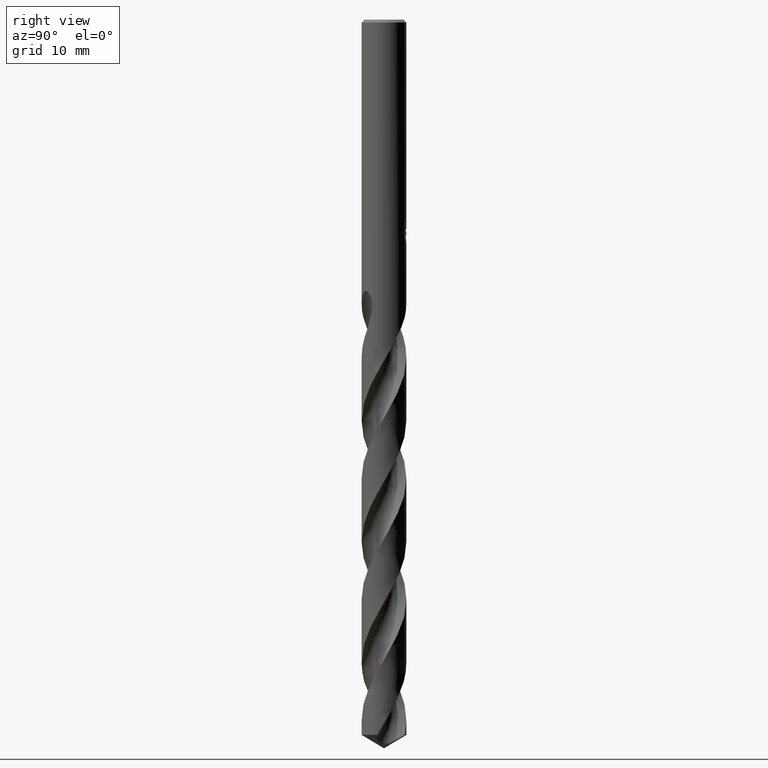
[diagram: clean part render]
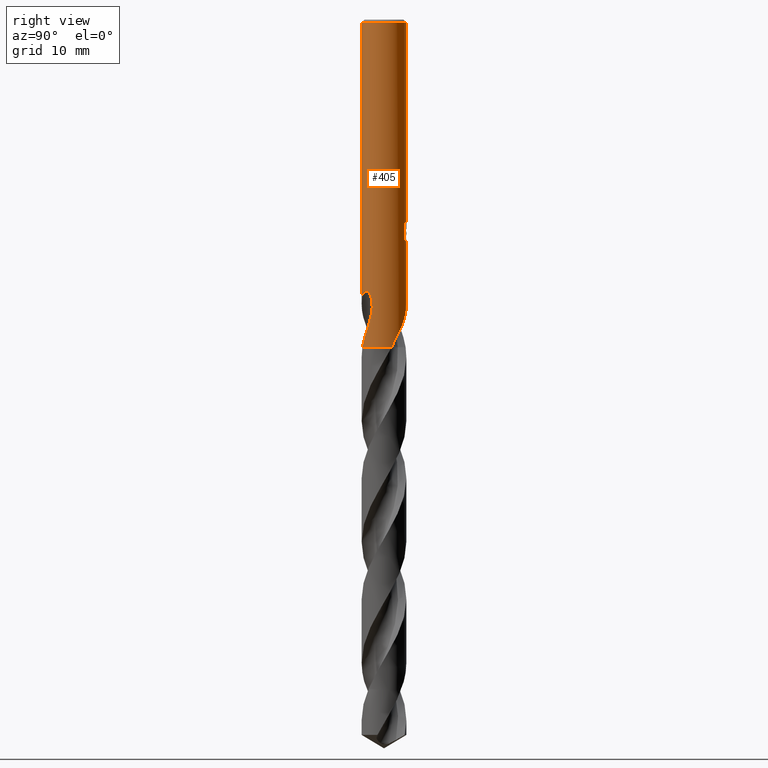
[diagram: same view with one face highlighted and labeled with its STEP entity id]
A machine part, right view. The second image highlights one B-rep face of the part: STEP entity #405.
In plain terms, the highlighted cylindrical surface (edge-blend (fillet) strip) has radius 3.1 mm, axis along (-0, -0, 1).
Its self-contained STEP definition (entity closure, byte-faithful):
#295=EDGE_CURVE('',#527,#435,#834,.T.);
#299=VERTEX_POINT('',#838);
#307=VERTEX_POINT('',#846);
#317=EDGE_CURVE('',#407,#623,#857,.T.);
#327=VERTEX_POINT('',#868);
#349=VERTEX_POINT('',#893);
#369=EDGE_CURVE('',#389,#299,#914,.T.);
#375=EDGE_CURVE('',#327,#615,#920,.T.);
#389=VERTEX_POINT('',#935);
#405=ADVANCED_FACE('',(#952),#953,.T.);
#407=VERTEX_POINT('',#955);
#435=VERTEX_POINT('',#985);
#495=EDGE_CURVE('',#563,#615,#1052,.T.);
#499=EDGE_CURVE('',#535,#575,#1056,.T.);
#517=EDGE_CURVE('',#299,#327,#1074,.T.);
#521=EDGE_CURVE('',#563,#807,#1079,.T.);
#527=VERTEX_POINT('',#1085);
#535=VERTEX_POINT('',#1094);
#561=VERTEX_POINT('',#1123);
#563=VERTEX_POINT('',#1125);
#569=EDGE_CURVE('',#389,#561,#1132,.T.);
#575=VERTEX_POINT('',#1139);
#587=EDGE_CURVE('',#407,#561,#1152,.T.);
#601=EDGE_CURVE('',#349,#623,#1166,.T.);
#615=VERTEX_POINT('',#1180);
#617=EDGE_CURVE('',#535,#731,#1182,.T.);
#623=VERTEX_POINT('',#1188);
#649=EDGE_CURVE('',#307,#527,#1218,.T.);
#657=EDGE_CURVE('',#763,#349,#1226,.T.);
#689=EDGE_CURVE('',#435,#763,#1261,.T.);
#713=EDGE_CURVE('',#575,#307,#1289,.T.);
#721=EDGE_CURVE('',#807,#731,#1297,.T.);
#731=VERTEX_POINT('',#1308);
#763=VERTEX_POINT('',#1344);
#807=VERTEX_POINT('',#1394);
#834=B_SPLINE_CURVE_WITH_KNOTS('',3,(#1414,#1415,#1416,#1417,#1418,#1419,#1420,#1421),.UNSPECIFIED.,.F.,.F.,(4,2,2,4),(8.15966420136941,8.47228526715934,8.78490633294927,9.41321858777906),.UNSPECIFIED.);
#838=CARTESIAN_POINT('',(2.5222907062751,-1.80223461098667,-40.9947012967414));
#846=CARTESIAN_POINT('',(0.873560781758957,2.97437246500378,-29.3198931596091));
#857=LINE('',#1604,#1605);
#868=CARTESIAN_POINT('',(2.15473976281074,-2.2286983991923,-42.6922));
#893=CARTESIAN_POINT('',(0.799431726384364,2.99514756144837,-28.000000276873));
#914=B_SPLINE_CURVE_WITH_KNOTS('',3,(#1813,#1814,#1815,#1816,#1817,#1818,#1819,#1820,#1821,#1822,#1823,#1824,#1825,#1826,#1827,#1828,#1829,#1830,#1831,#1832,#1833,#1834,#1835,#1836,#1837,#1838,#1839,#1840,#1841,#1842),.UNSPECIFIED.,.F.,.F.,(4,2,2,2,2,2,2,2,2,2,2,2,2,2,4),(0.0,1.51882806749273,2.34814309206105,3.09929389552633,3.97195054001777,5.02021064371413,5.92875563348902,6.34047695448266,6.64139503833549,6.92615155074278,7.28738216247934,7.81587719972031,8.5671950340882,9.05885319429973,9.57555253420532),.UNSPECIFIED.);
#920=B_SPLINE_CURVE_WITH_KNOTS('',3,(#1954,#1955,#1956,#1957,#1958,#1959,#1960,#1961),.UNSPECIFIED.,.F.,.F.,(4,2,2,4),(0.0,0.874748999898117,1.67779449377493,2.91025092527452),.UNSPECIFIED.);
#935=CARTESIAN_POINT('',(9.22563102843422E-013,-3.1,-39.3969657646597));
#952=FACE_OUTER_BOUND('',#3245,.T.);
#953=CYLINDRICAL_SURFACE('',#3246,3.1);
#955=CARTESIAN_POINT('',(0.0,3.1,-0.399999999999999));
#985=CARTESIAN_POINT('',(1.33721006514658,2.79676049058025,-30.2901657003257));
#1052=CIRCLE('',#5490,3.1);
#1056=B_SPLINE_CURVE_WITH_KNOTS('',3,(#5495,#5496,#5497,#5498,#5499,#5500,#5501,#5502,#5503,#5504,#5505,#5506,#5507,#5508,#5509,#5510),.UNSPECIFIED.,.F.,.F.,(4,2,2,2,2,2,2,4),(5.64977016343772,6.27877336211963,6.59268624981771,6.90659913751579,7.22051202521387,7.53442491291195,7.84704601060205,8.15966710829215),.UNSPECIFIED.);
#1074=B_SPLINE_CURVE_WITH_KNOTS('',3,(#5742,#5743,#5744,#5745),.UNSPECIFIED.,.F.,.F.,(4,4),(0.0,1.78163168796762),.UNSPECIFIED.);
#1079=B_SPLINE_CURVE_WITH_KNOTS('',3,(#5751,#5752,#5753,#5754,#5755,#5756,#5757,#5758,#5759,#5760),.UNSPECIFIED.,.F.,.F.,(4,2,2,2,4),(0.0,1.59395981695958,2.08115258226266,2.16518732635923,2.22181156654489),.UNSPECIFIED.);
#1085=CARTESIAN_POINT('',(0.873560781758956,2.97437246500378,-30.7587351791531));
#1094=CARTESIAN_POINT('',(-1.44945831354929E-017,3.1,-31.0310253601033));
#1123=CARTESIAN_POINT('',(3.79627969684937E-016,-3.1,-0.399999999999999));
#1125=CARTESIAN_POINT('',(2.91464264555407,1.05586848078612,-45.4));
#1132=LINE('',#7438,#7439);
#1139=CARTESIAN_POINT('',(0.29010312703583,3.08639598491251,-30.9998328990228));
#1152=CIRCLE('',#7989,3.1);
#1166=B_SPLINE_CURVE_WITH_KNOTS('',3,(#8158,#8159,#8160,#8161,#8162,#8163,#8164,#8165,#8166,#8167,#8168,#8169,#8170,#8171,#8172,#8173,#8174,#8175,#8176,#8177,#8178,#8179,#8180,#8181,#8182,#8183,#8184),.UNSPECIFIED.,.F.,.F.,(4,2,3,2,2,2,2,2,2,2,2,2,4),(-0.544047311581541,-0.27202365579077,0.0,0.27202365579077,0.54404731158154,0.817537563624119,1.0910278156667,1.36199091962429,1.63295402358188,1.90466121485385,2.17636840612583,2.4480755973978,2.71978278866978),.UNSPECIFIED.);
#1180=CARTESIAN_POINT('',(0.805251289871734,-2.99358820818093,-45.4));
#1182=LINE('',#8338,#8339);
#1188=CARTESIAN_POINT('',(1.98869905017056E-015,3.1,-29.0232688117743));
#1218=LINE('',#8788,#8789);
#1226=B_SPLINE_CURVE_WITH_KNOTS('',3,(#8799,#8800,#8801,#8802,#8803,#8804,#8805,#8806),.UNSPECIFIED.,.F.,.F.,(4,2,2,4),(0.628312277159022,1.25662455431804,1.56924563035358,1.88186670638912),.UNSPECIFIED.);
#1261=LINE('',#9839,#9840);
#1289=ELLIPSE('',#11669,9.4487831774463,3.1);
#1297=B_SPLINE_CURVE_WITH_KNOTS('',3,(#11827,#11828,#11829,#11830,#11831,#11832,#11833,#11834,#11835,#11836,#11837,#11838,#11839,#11840,#11841,#11842,#11843,#11844,#11845,#11846,#11847,#11848,#11849,#11850,#11851,#11852,#11853,#11854,#11855,#11856),.UNSPECIFIED.,.F.,.F.,(4,2,2,2,2,2,2,2,2,2,2,2,2,2,4),(0.0,1.51882806749273,2.3481430920609,3.0992938955258,3.97195054001711,5.0202106437135,5.92875563348835,6.34047695448195,6.64139503833474,6.926151550742,7.28738216247857,7.81587719971821,8.56719503408224,9.0588531942914,9.57555253419443),.UNSPECIFIED.);
#1308=CARTESIAN_POINT('',(-9.24561504287748E-013,3.1,-39.3969657646597));
#1344=CARTESIAN_POINT('',(1.33721006514658,2.79676049058025,-28.5150484364821));
#1394=CARTESIAN_POINT('',(1.97536810780282,2.38912553849217,-42.6922));
#1414=CARTESIAN_POINT('',(0.599953570112042,3.04139042441279,-30.9051941843535));
#1415=CARTESIAN_POINT('',(0.699984278209264,3.02165807331751,-30.8633657111675));
#1416=CARTESIAN_POINT('',(0.795382103298816,2.9976287698751,-30.8115954578542));
#1417=CARTESIAN_POINT('',(0.971201062765724,2.94536575455258,-30.6928303330075));
#1418=CARTESIAN_POINT('',(1.05162806896839,2.91717231579037,-30.6258264354077));
#1419=CARTESIAN_POINT('',(1.26558117285469,2.83404251565313,-30.4120828026627));
#1420=CARTESIAN_POINT('',(1.39018906519454,2.77244069292176,-30.2315967283389));
#1421=CARTESIAN_POINT('',(1.47389663174399,2.72720162784744,-30.0317064747582));
#1604=CARTESIAN_POINT('',(-3.79627969684937E-016,3.1,-41.7));
#1605=VECTOR('',#14806,1.0);
#1813=CARTESIAN_POINT('',(-1.97536810780282,-2.38912553849217,-42.6922));
#1814=CARTESIAN_POINT('',(-1.7708807234358,-2.55819905556719,-42.261022001472));
#1815=CARTESIAN_POINT('',(-1.53576649982899,-2.70849367566801,-41.8590250964487));
#1816=CARTESIAN_POINT('',(-1.1257973591669,-2.89271122258338,-41.1874616926583));
#1817=CARTESIAN_POINT('',(-0.978271281837683,-2.9457036191997,-40.9511832219425));
#1818=CARTESIAN_POINT('',(-0.692679434102988,-3.02490259327778,-40.4938093138894));
#1819=CARTESIAN_POINT('',(-0.555888832730788,-3.05288340430265,-40.2748457808992));
#1820=CARTESIAN_POINT('',(-0.259794797245697,-3.09326662945122,-39.8029211960476));
#1821=CARTESIAN_POINT('',(-0.098018095718679,-3.10274750096446,-39.5462661558878));
#1822=CARTESIAN_POINT('',(0.261246521940527,-3.09519051117856,-38.9971963347391));
#1823=CARTESIAN_POINT('',(0.47425412898615,-3.07181686471941,-38.6847696046472));
#1824=CARTESIAN_POINT('',(0.885011757644625,-2.97742290574301,-38.169599482215));
#1825=CARTESIAN_POINT('',(1.11226752420549,-2.90550662943275,-37.9182166185662));
#1826=CARTESIAN_POINT('',(1.45621687591263,-2.73927441599933,-37.6828219096917));
#1827=CARTESIAN_POINT('',(1.57006637132762,-2.6765179412803,-37.6246464646858));
#1828=CARTESIAN_POINT('',(1.76955686207914,-2.54730081379236,-37.5799573040035));
#1829=CARTESIAN_POINT('',(1.85137911464216,-2.48845436381772,-37.5791228570071));
#1830=CARTESIAN_POINT('',(2.00377747902953,-2.36724296106536,-37.6182352139647));
#1831=CARTESIAN_POINT('',(2.07042891922598,-2.30870027340028,-37.6549065146684));
#1832=CARTESIAN_POINT('',(2.20606386004693,-2.18040854645807,-37.769646790266));
#1833=CARTESIAN_POINT('',(2.26881472191503,-2.11392455348813,-37.8543618397177));
#1834=CARTESIAN_POINT('',(2.39734877656159,-1.96875188957499,-38.0863379504036));
#1835=CARTESIAN_POINT('',(2.4587854930895,-1.8896949907297,-38.2583956716662));
#1836=CARTESIAN_POINT('',(2.57431496444712,-1.73094973858956,-38.7397940396019));
#1837=CARTESIAN_POINT('',(2.61608153922309,-1.66333190051155,-39.0826395058668));
#1838=CARTESIAN_POINT('',(2.63675433887376,-1.63026516108643,-39.7171628866849));
#1839=CARTESIAN_POINT('',(2.63189355114085,-1.63832480796254,-39.9698619826939));
#1840=CARTESIAN_POINT('',(2.59756121997833,-1.69226152419044,-40.4827148869004));
#1841=CARTESIAN_POINT('',(2.56690652348506,-1.73979320606883,-40.7409383471765));
#1842=CARTESIAN_POINT('',(2.5222907062751,-1.80223461098667,-40.9947012967415));
#1954=CARTESIAN_POINT('',(2.15473976281074,-2.2286983991923,-42.6922));
#1955=CARTESIAN_POINT('',(2.05475118776796,-2.32536888567425,-42.9484767015814));
#1956=CARTESIAN_POINT('',(1.94691940165378,-2.41723925921789,-43.1993415346584));
#1957=CARTESIAN_POINT('',(1.70888614047329,-2.5902794888438,-43.6945440270179));
#1958=CARTESIAN_POINT('',(1.58617492382283,-2.66776128663929,-43.9386089439669));
#1959=CARTESIAN_POINT('',(1.24730137466567,-2.84748669428215,-44.5982105108048));
#1960=CARTESIAN_POINT('',(1.03028936420251,-2.93305476569547,-44.9994833157));
#1961=CARTESIAN_POINT('',(0.805251289871729,-2.99358820818094,-45.4));
#3245=EDGE_LOOP('',(#14880,#14881,#14882,#14883,#14884,#14885,#14886,#14887,#14888,#14889,#14890,#14891,#14892,#14893,#14894,#14895,#14896));
#3246=AXIS2_PLACEMENT_3D('',#14897,#14898,#14899);
#5490=AXIS2_PLACEMENT_3D('',#15001,#15002,#15003);
#5495=CARTESIAN_POINT('',(-1.53068466092516,2.69573820479817,-30.0315555480733));
#5496=CARTESIAN_POINT('',(-1.4471172432977,2.74318906822608,-30.2311675734932));
#5497=CARTESIAN_POINT('',(-1.32286576328102,2.80779321755732,-30.4112381622319));
#5498=CARTESIAN_POINT('',(-1.10958399603235,2.89563816137245,-30.6247376101632));
#5499=CARTESIAN_POINT('',(-1.02923830208649,2.92560625515983,-30.6918137793844));
#5500=CARTESIAN_POINT('',(-0.853519314341852,2.98161168205741,-30.8107699994758));
#5501=CARTESIAN_POINT('',(-0.758139638881013,3.00760932408012,-30.8626593067907));
#5502=CARTESIAN_POINT('',(-0.557970751858312,3.05109131544549,-30.9465768341647));
#5503=CARTESIAN_POINT('',(-0.452988866121696,3.06858788480674,-30.9786713572834));
#5504=CARTESIAN_POINT('',(-0.24050348041858,3.09250522967303,-31.0210268537155));
#5505=CARTESIAN_POINT('',(-0.132995419099261,3.09891291454762,-31.0312723335086));
#5506=CARTESIAN_POINT('',(0.0758405017600893,3.10082365250403,-31.0312723335086));
#5507=CARTESIAN_POINT('',(0.18302515664884,3.09642382953069,-31.0211094205278));
#5508=CARTESIAN_POINT('',(0.395064435270508,3.07656672802846,-30.9789776825712));
#5509=CARTESIAN_POINT('',(0.499923131174884,3.06112273190009,-30.9470230941135));
#5510=CARTESIAN_POINT('',(0.599953847766213,3.0413903696419,-30.905194616892));
#5742=CARTESIAN_POINT('',(2.52229070632772,-1.80223461091303,-40.9947012967704));
#5743=CARTESIAN_POINT('',(2.42234926158182,-1.94210617687515,-41.5631534197898));
#5744=CARTESIAN_POINT('',(2.30189310764169,-2.08642829057071,-42.1349883778822));
#5745=CARTESIAN_POINT('',(2.15473976281074,-2.2286983991923,-42.6922));
#5751=CARTESIAN_POINT('',(2.91464264555407,1.05586848078612,-45.4));
#5752=CARTESIAN_POINT('',(2.82302736213019,1.30876533007267,-44.9417962232492));
#5753=CARTESIAN_POINT('',(2.70136889458237,1.54187730077739,-44.5033066110205));
#5754=CARTESIAN_POINT('',(2.5135745255276,1.81603824445404,-43.9044510136534));
#5755=CARTESIAN_POINT('',(2.46814083244479,1.87719784361478,-43.7640237972009));
#5756=CARTESIAN_POINT('',(2.41340088467721,1.94567790516687,-43.5976275628393));
#5757=CARTESIAN_POINT('',(2.35345258703501,2.02446305464588,-43.4021941746874));
#5758=CARTESIAN_POINT('',(2.16260379699386,2.22384573305185,-42.995932870401));
#5759=CARTESIAN_POINT('',(2.07522660334604,2.30656089958511,-42.8413895543172));
#5760=CARTESIAN_POINT('',(1.97536810780282,2.38912553849217,-42.6922));
#7438=CARTESIAN_POINT('',(3.79627969684937E-016,-3.1,-41.7));
#7439=VECTOR('',#15086,1.0);
#7989=AXIS2_PLACEMENT_3D('',#15100,#15101,#15102);
#8158=CARTESIAN_POINT('',(0.665571214760624,3.02770787198535,-27.8140456731388));
#8159=CARTESIAN_POINT('',(0.728838770564877,3.01379997011635,-27.8774937701623));
#8160=CARTESIAN_POINT('',(0.783906972885133,2.99948895621659,-27.9578776990628));
#8161=CARTESIAN_POINT('',(0.85720033310372,2.97937103630961,-28.1345943010172));
#8162=CARTESIAN_POINT('',(0.875400981188567,2.97383138764357,-28.2309674606565));
#8163=CARTESIAN_POINT('',(0.875400981188567,2.97383138764357,-28.3216420125868));
#8164=CARTESIAN_POINT('',(0.875400981188567,2.97383138764357,-28.412316564517));
#8165=CARTESIAN_POINT('',(0.85720033310372,2.97937103630961,-28.5086897241563));
#8166=CARTESIAN_POINT('',(0.783906972885131,2.99948895621659,-28.6854063261108));
#8167=CARTESIAN_POINT('',(0.728838770564878,3.01379997011635,-28.7657902550112));
#8168=CARTESIAN_POINT('',(0.601962556415367,3.04169075732111,-28.8930285249745));
#8169=CARTESIAN_POINT('',(0.521393283679584,3.05714781349765,-28.9484278893603));
#8170=CARTESIAN_POINT('',(0.344218806670832,3.08212866741109,-29.02218462433));
#8171=CARTESIAN_POINT('',(0.247573524491119,3.09144272446273,-29.0405166027747));
#8172=CARTESIAN_POINT('',(0.0663205657006245,3.10060630713831,-29.0405166027747));
#8173=CARTESIAN_POINT('',(-0.0299342363608072,3.10111985673356,-29.0224868721151));
#8174=CARTESIAN_POINT('',(-0.206897331330419,3.09435517013443,-28.9492360517792));
#8175=CARTESIAN_POINT('',(-0.287617813420027,3.08729471865752,-28.8940244597052));
#8176=CARTESIAN_POINT('',(-0.415226859949067,3.07273851145824,-28.7666459851553));
#8177=CARTESIAN_POINT('',(-0.470625830759263,3.06429462583626,-28.6858731887849));
#8178=CARTESIAN_POINT('',(-0.544191930242767,3.05208869373708,-28.5086662460631));
#8179=CARTESIAN_POINT('',(-0.562348199187247,3.04856761494162,-28.4122110763441));
#8180=CARTESIAN_POINT('',(-0.562348199187247,3.04856761494162,-28.2310729488295));
#8181=CARTESIAN_POINT('',(-0.544191930242767,3.05208869373708,-28.1346177791104));
#8182=CARTESIAN_POINT('',(-0.470625830759263,3.06429462583626,-27.9574108363887));
#8183=CARTESIAN_POINT('',(-0.415226859949067,3.07273851145824,-27.8766380400183));
#8184=CARTESIAN_POINT('',(-0.351334850531759,3.08002659449587,-27.812861474666));
#8338=CARTESIAN_POINT('',(-3.79627969684937E-016,3.1,-41.7));
#8339=VECTOR('',#15108,1.0);
#8788=CARTESIAN_POINT('',(0.873560781758957,2.97437246500378,-30.0393141693811));
#8789=VECTOR('',#15139,1.0);
#8799=CARTESIAN_POINT('',(1.47389663954809,2.72720162362977,-28.7735076755176));
#8800=CARTESIAN_POINT('',(1.39018906998972,2.77244069063973,-28.5736174149535));
#8801=CARTESIAN_POINT('',(1.26558117318822,2.83404251580207,-28.3931313343355));
#8802=CARTESIAN_POINT('',(1.05162806166936,2.91717231848777,-28.1793876942884));
#8803=CARTESIAN_POINT('',(0.971201052739967,2.94536575795157,-28.112383794502));
#8804=CARTESIAN_POINT('',(0.795382087312023,2.99762877420847,-27.9936186657736));
#8805=CARTESIAN_POINT('',(0.699984258987702,3.02165807788142,-27.9418484107653));
#8806=CARTESIAN_POINT('',(0.599953547513048,3.04139042887073,-27.9000199362164));
#9839=CARTESIAN_POINT('',(1.33721006514658,2.79676049058025,-29.4026070684039));
#9840=VECTOR('',#15182,1.0);
#11669=AXIS2_PLACEMENT_3D('',#15221,#15222,#15223);
#11827=CARTESIAN_POINT('',(1.97536810780282,2.38912553849217,-42.6922));
#11828=CARTESIAN_POINT('',(1.7708807234358,2.55819905556719,-42.261022001472));
#11829=CARTESIAN_POINT('',(1.53576649982899,2.70849367566801,-41.8590250964487));
#11830=CARTESIAN_POINT('',(1.12579735916693,2.89271122258337,-41.1874616926583));
#11831=CARTESIAN_POINT('',(0.978271281837742,2.94570361919969,-40.9511832219426));
#11832=CARTESIAN_POINT('',(0.692679434102977,3.02490259327778,-40.4938093138893));
#11833=CARTESIAN_POINT('',(0.555888832730763,3.05288340430266,-40.2748457808992));
#11834=CARTESIAN_POINT('',(0.259794797245663,3.09326662945122,-39.8029211960476));
#11835=CARTESIAN_POINT('',(0.0980180957186639,3.10274750096445,-39.5462661558878));
#11836=CARTESIAN_POINT('',(-0.261246521940555,3.09519051117856,-38.997196334739));
#11837=CARTESIAN_POINT('',(-0.474254128986164,3.0718168647194,-38.6847696046472));
#11838=CARTESIAN_POINT('',(-0.885011757644611,2.97742290574301,-38.169599482215));
#11839=CARTESIAN_POINT('',(-1.11226752420549,2.90550662943275,-37.9182166185662));
#11840=CARTESIAN_POINT('',(-1.45621687591263,2.73927441599933,-37.6828219096917));
#11841=CARTESIAN_POINT('',(-1.57006637132762,2.6765179412803,-37.6246464646858));
#11842=CARTESIAN_POINT('',(-1.76955686207914,2.54730081379236,-37.5799573040035));
#11843=CARTESIAN_POINT('',(-1.85137911464216,2.48845436381772,-37.5791228570071));
#11844=CARTESIAN_POINT('',(-2.00377747902953,2.36724296106536,-37.6182352139647));
#11845=CARTESIAN_POINT('',(-2.07042891922598,2.30870027340027,-37.6549065146684));
#11846=CARTESIAN_POINT('',(-2.20606386004693,2.18040854645806,-37.769646790266));
#11847=CARTESIAN_POINT('',(-2.26881472191505,2.11392455348811,-37.8543618397178));
#11848=CARTESIAN_POINT('',(-2.39734877656137,1.96875188957524,-38.0863379504032));
#11849=CARTESIAN_POINT('',(-2.45878549308936,1.8896949907299,-38.2583956716656));
#11850=CARTESIAN_POINT('',(-2.57431496444715,1.73094973858952,-38.739794039602));
#11851=CARTESIAN_POINT('',(-2.61608153922309,1.66333190051154,-39.082639505867));
#11852=CARTESIAN_POINT('',(-2.63675433887376,1.63026516108643,-39.7171628866849));
#11853=CARTESIAN_POINT('',(-2.63189355114086,1.63832480796253,-39.9698619826939));
#11854=CARTESIAN_POINT('',(-2.59756121997833,1.69226152419043,-40.4827148869004));
#11855=CARTESIAN_POINT('',(-2.56690652348506,1.73979320606883,-40.7409383471765));
#11856=CARTESIAN_POINT('',(-2.5222907062751,1.80223461098666,-40.9947012967415));
#14806=DIRECTION('',(0.0,0.0,-1.0));
#14880=ORIENTED_EDGE('',*,*,#317,.F.);
#14881=ORIENTED_EDGE('',*,*,#587,.T.);
#14882=ORIENTED_EDGE('',*,*,#569,.F.);
#14883=ORIENTED_EDGE('',*,*,#369,.T.);
#14884=ORIENTED_EDGE('',*,*,#517,.T.);
#14885=ORIENTED_EDGE('',*,*,#375,.T.);
#14886=ORIENTED_EDGE('',*,*,#495,.F.);
#14887=ORIENTED_EDGE('',*,*,#521,.T.);
#14888=ORIENTED_EDGE('',*,*,#721,.T.);
#14889=ORIENTED_EDGE('',*,*,#617,.F.);
#14890=ORIENTED_EDGE('',*,*,#499,.T.);
#14891=ORIENTED_EDGE('',*,*,#713,.T.);
#14892=ORIENTED_EDGE('',*,*,#649,.T.);
#14893=ORIENTED_EDGE('',*,*,#295,.T.);
#14894=ORIENTED_EDGE('',*,*,#689,.T.);
#14895=ORIENTED_EDGE('',*,*,#657,.T.);
#14896=ORIENTED_EDGE('',*,*,#601,.T.);
#14897=CARTESIAN_POINT('',(0.0,0.0,-41.7));
#14898=DIRECTION('',(-0.0,-0.0,1.0));
#14899=DIRECTION('',(0.0,1.0,0.0));
#15001=CARTESIAN_POINT('',(0.0,0.0,-45.4));
#15002=DIRECTION('',(0.0,0.0,-1.0));
#15003=DIRECTION('',(0.0,1.0,0.0));
#15086=DIRECTION('',(-0.0,-0.0,1.0));
#15100=CARTESIAN_POINT('',(0.0,0.0,-0.399999999999999));
#15101=DIRECTION('',(0.0,0.0,-1.0));
#15102=DIRECTION('',(0.0,1.0,0.0));
#15108=DIRECTION('',(0.0,0.0,-1.0));
#15139=DIRECTION('',(0.0,0.0,-1.0));
#15182=DIRECTION('',(-0.0,-0.0,1.0));
#15221=CARTESIAN_POINT('',(0.0,0.0,-31.8351219173269));
#15222=DIRECTION('',(0.944648353914092,0.0,-0.328084573619969));
#15223=DIRECTION('',(0.328084573619969,-0.0,0.944648353914092));